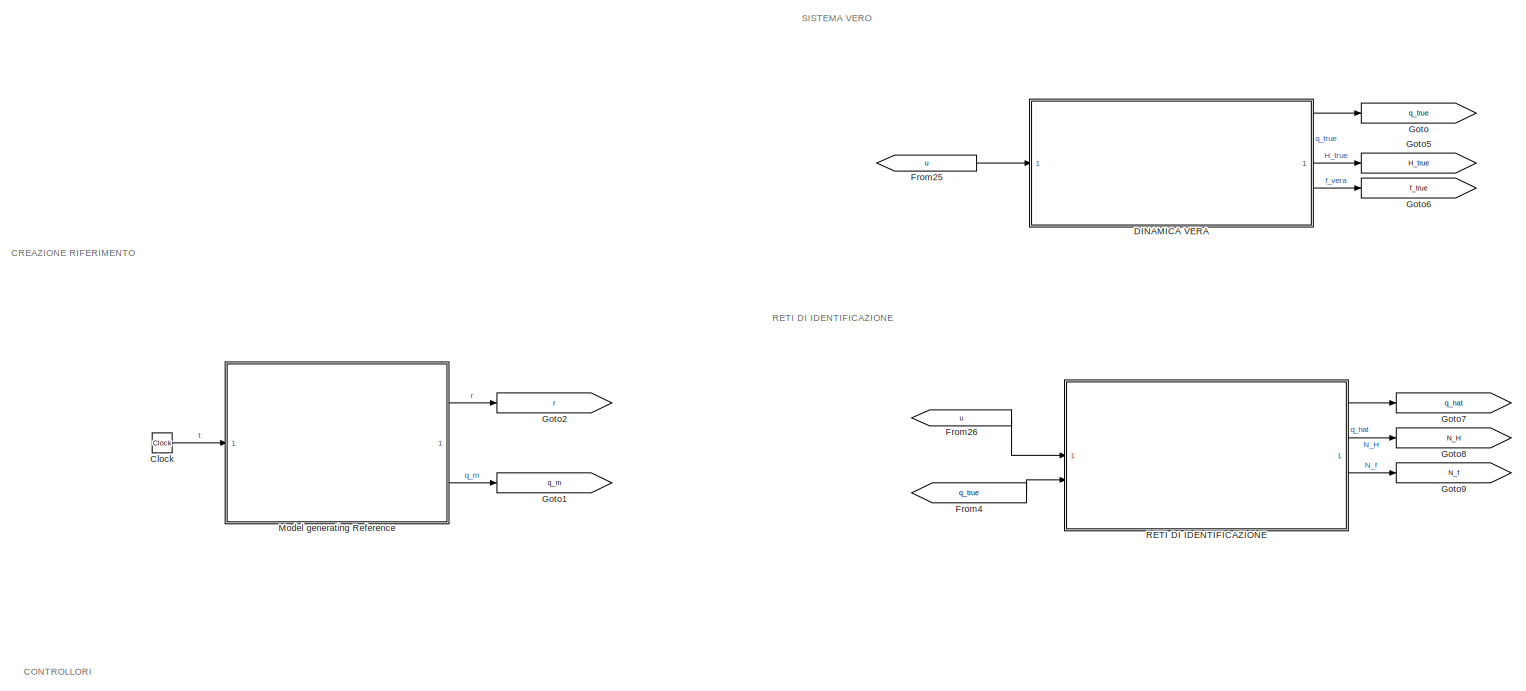
[diagram: root canvas - part 1/3, full width, top band]
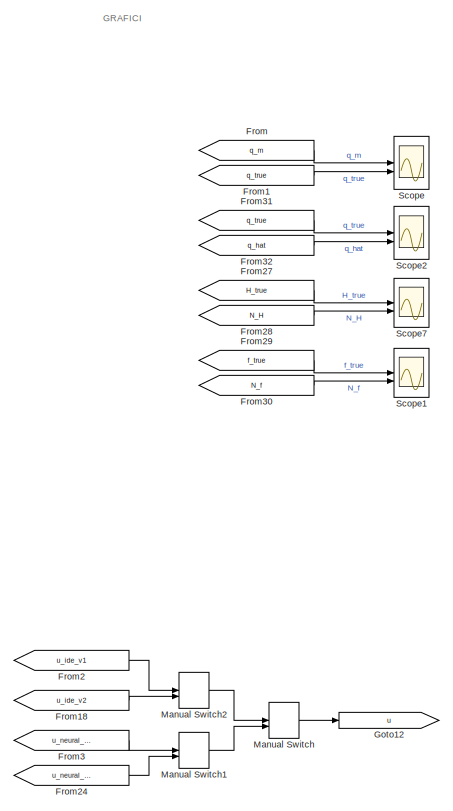
[diagram: root canvas - part 2/3, bottom right region]
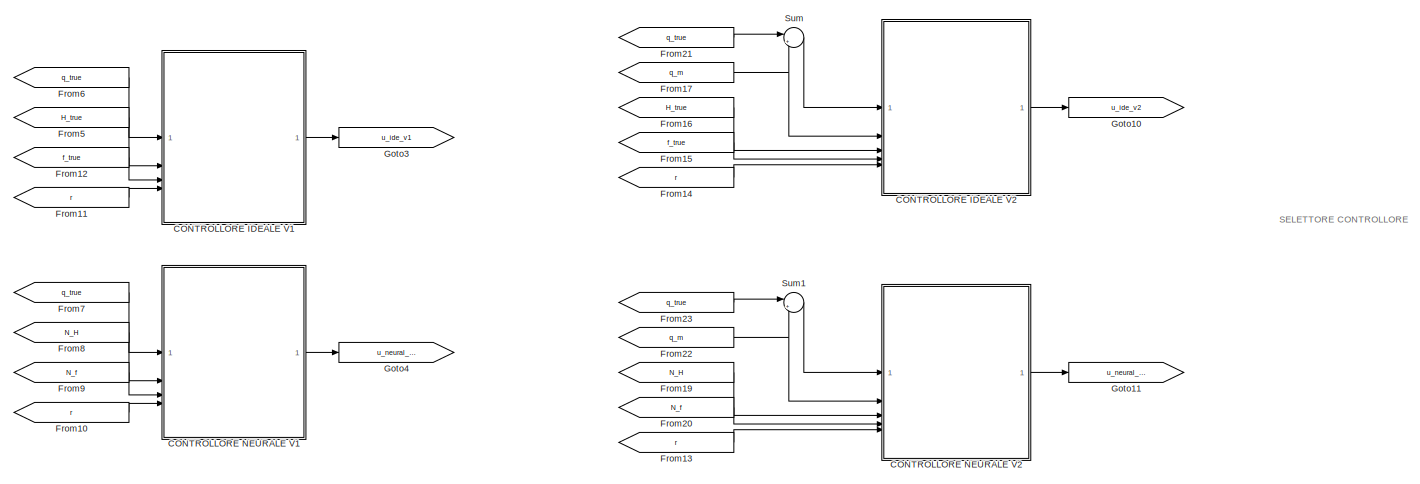
[diagram: root canvas - part 3/3, bottom center region]
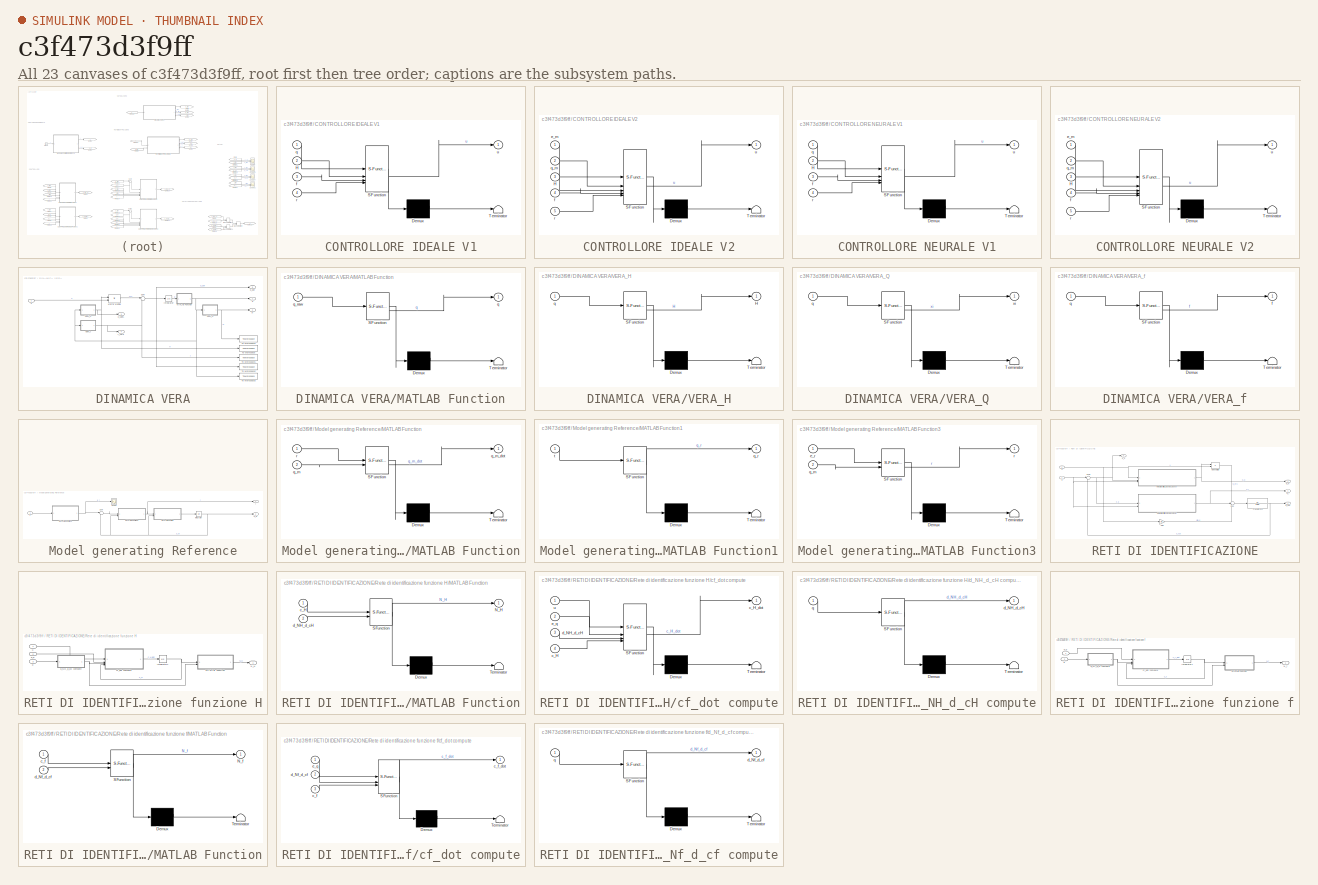
[diagram: thumbnail index - all 23 canvases of the model, root first then tree order]
MODEL slx_c3f473d3f9ff
KIND model
CONFIG AbsTol = auto
CONFIG EnableMultiTasking = off
CONFIG FixedStep = ST
CONFIG MaxStep = auto
CONFIG MinStep = auto
CONFIG RelTol = 1e-3
CONFIG SampleTimeConstraint = Unconstrained
CONFIG SolverName = FixedStepAuto
CONFIG StartTime = 0.0
CONFIG StopTime = T_max
BLOCK [SubSystem] CONTROLLORE IDEALE V1
  ErrorFcn = Stateflow.Translate.translate
  PermitHierarchicalResolution = ExplicitOnly
  SFBlockType = MATLAB Function
  TreatAsAtomicUnit = on
BLOCK [Demux] CONTROLLORE IDEALE V1/ Demux 
  Outputs = 1
BLOCK [S-Function] CONTROLLORE IDEALE V1/ SFunction 
  EnableBusSupport = on
  FunctionName = sf_sfun
  Parameters = a_m,b_m
  PortCounts = [4 2]
  SFcnIsStateOwnerBlock = off
  SFunctionDeploymentMode = off
  Tag = Stateflow S-Function 13
BLOCK [Terminator] CONTROLLORE IDEALE V1/ Terminator 
BLOCK [Inport] CONTROLLORE IDEALE V1/H
  Port = 2
BLOCK [Inport] CONTROLLORE IDEALE V1/f
  Port = 3
BLOCK [Inport] CONTROLLORE IDEALE V1/q
BLOCK [Inport] CONTROLLORE IDEALE V1/r
  Port = 4
BLOCK [Outport] CONTROLLORE IDEALE V1/u
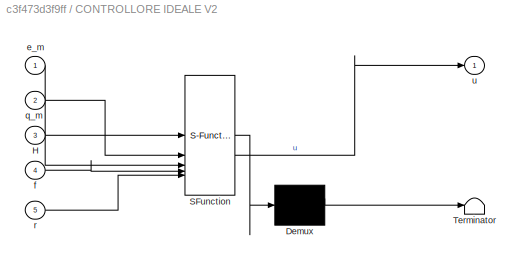
BLOCK [SubSystem] CONTROLLORE IDEALE V2
  ErrorFcn = Stateflow.Translate.translate
  PermitHierarchicalResolution = ExplicitOnly
  SFBlockType = MATLAB Function
  TreatAsAtomicUnit = on
BLOCK [Demux] CONTROLLORE IDEALE V2/ Demux 
  Outputs = 1
BLOCK [S-Function] CONTROLLORE IDEALE V2/ SFunction 
  EnableBusSupport = on
  FunctionName = sf_sfun
  Parameters = a_m,b_m,k_m
  PortCounts = [5 2]
  SFcnIsStateOwnerBlock = off
  SFunctionDeploymentMode = off
  Tag = Stateflow S-Function 14
BLOCK [Terminator] CONTROLLORE IDEALE V2/ Terminator 
BLOCK [Inport] CONTROLLORE IDEALE V2/H
  Port = 3
BLOCK [Inport] CONTROLLORE IDEALE V2/e_m
BLOCK [Inport] CONTROLLORE IDEALE V2/f
  Port = 4
BLOCK [Inport] CONTROLLORE IDEALE V2/q_m
  Port = 2
BLOCK [Inport] CONTROLLORE IDEALE V2/r
  Port = 5
BLOCK [Outport] CONTROLLORE IDEALE V2/u
BLOCK [SubSystem] CONTROLLORE NEURALE V1
  ErrorFcn = Stateflow.Translate.translate
  PermitHierarchicalResolution = ExplicitOnly
  SFBlockType = MATLAB Function
  TreatAsAtomicUnit = on
BLOCK [Demux] CONTROLLORE NEURALE V1/ Demux 
  Outputs = 1
BLOCK [S-Function] CONTROLLORE NEURALE V1/ SFunction 
  EnableBusSupport = on
  FunctionName = sf_sfun
  Parameters = a_m,b_m
  PortCounts = [4 2]
  SFcnIsStateOwnerBlock = off
  SFunctionDeploymentMode = off
  Tag = Stateflow S-Function 10
BLOCK [Terminator] CONTROLLORE NEURALE V1/ Terminator 
BLOCK [Inport] CONTROLLORE NEURALE V1/H
  Port = 2
BLOCK [Inport] CONTROLLORE NEURALE V1/f
  Port = 3
BLOCK [Inport] CONTROLLORE NEURALE V1/q
BLOCK [Inport] CONTROLLORE NEURALE V1/r
  Port = 4
BLOCK [Outport] CONTROLLORE NEURALE V1/u
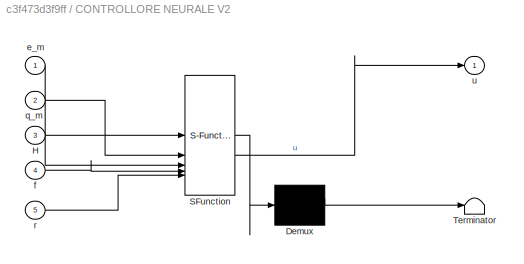
BLOCK [SubSystem] CONTROLLORE NEURALE V2
  ErrorFcn = Stateflow.Translate.translate
  PermitHierarchicalResolution = ExplicitOnly
  SFBlockType = MATLAB Function
  TreatAsAtomicUnit = on
BLOCK [Demux] CONTROLLORE NEURALE V2/ Demux 
  Outputs = 1
BLOCK [S-Function] CONTROLLORE NEURALE V2/ SFunction 
  EnableBusSupport = on
  FunctionName = sf_sfun
  Parameters = a_m,b_m,k_m
  PortCounts = [5 2]
  SFcnIsStateOwnerBlock = off
  SFunctionDeploymentMode = off
  Tag = Stateflow S-Function 15
BLOCK [Terminator] CONTROLLORE NEURALE V2/ Terminator 
BLOCK [Inport] CONTROLLORE NEURALE V2/H
  Port = 3
BLOCK [Inport] CONTROLLORE NEURALE V2/e_m
BLOCK [Inport] CONTROLLORE NEURALE V2/f
  Port = 4
BLOCK [Inport] CONTROLLORE NEURALE V2/q_m
  Port = 2
BLOCK [Inport] CONTROLLORE NEURALE V2/r
  Port = 5
BLOCK [Outport] CONTROLLORE NEURALE V2/u
BLOCK [Clock] Clock
BLOCK [SubSystem] DINAMICA VERA
BLOCK [Outport] DINAMICA VERA/H_VERA
  Port = 3
BLOCK [Integrator] DINAMICA VERA/Integrator
  InitialCondition = q_init
BLOCK [SubSystem] DINAMICA VERA/MATLAB Function
  ErrorFcn = Stateflow.Translate.translate
  PermitHierarchicalResolution = ExplicitOnly
  SFBlockType = MATLAB Function
  TreatAsAtomicUnit = on
BLOCK [Demux] DINAMICA VERA/MATLAB Function/ Demux 
  Outputs = 1
BLOCK [S-Function] DINAMICA VERA/MATLAB Function/ SFunction 
  EnableBusSupport = on
  FunctionName = sf_sfun
  PortCounts = [1 2]
  SFcnIsStateOwnerBlock = off
  SFunctionDeploymentMode = off
  Tag = Stateflow S-Function 3
BLOCK [Terminator] DINAMICA VERA/MATLAB Function/ Terminator 
BLOCK [Outport] DINAMICA VERA/MATLAB Function/q
BLOCK [Inport] DINAMICA VERA/MATLAB Function/q_raw
BLOCK [Product] DINAMICA VERA/Matrix Multiply
  Multiplication = Matrix(*)
BLOCK [Sum] DINAMICA VERA/Sum
  Inputs = |++
BLOCK [ToWorkspace] DINAMICA VERA/To Workspace
  FixptAsFi = on
  MaxDataPoints = inf
  SampleTime = -1
  SaveFormat = Timeseries
  VariableName = out_H_true
BLOCK [ToWorkspace] DINAMICA VERA/To Workspace1
  FixptAsFi = on
  MaxDataPoints = inf
  SampleTime = -1
  SaveFormat = Timeseries
  VariableName = out_f_true
BLOCK [ToWorkspace] DINAMICA VERA/To Workspace2
  FixptAsFi = on
  MaxDataPoints = inf
  SampleTime = -1
  SaveFormat = Timeseries
  VariableName = out_q_dot_true
BLOCK [ToWorkspace] DINAMICA VERA/To Workspace3
  FixptAsFi = on
  MaxDataPoints = inf
  SampleTime = -1
  SaveFormat = Timeseries
  VariableName = out_q_true
BLOCK [ToWorkspace] DINAMICA VERA/To Workspace4
  FixptAsFi = on
  MaxDataPoints = inf
  SampleTime = -1
  SaveFormat = Timeseries
  VariableName = out_xi_true
BLOCK [SubSystem] DINAMICA VERA/VERA_H
  ErrorFcn = Stateflow.Translate.translate
  PermitHierarchicalResolution = ExplicitOnly
  SFBlockType = MATLAB Function
  TreatAsAtomicUnit = on
BLOCK [Demux] DINAMICA VERA/VERA_H/ Demux 
  Outputs = 1
BLOCK [S-Function] DINAMICA VERA/VERA_H/ SFunction 
  EnableBusSupport = on
  FunctionName = sf_sfun
  PortCounts = [1 2]
  SFcnIsStateOwnerBlock = off
  SFunctionDeploymentMode = off
  Tag = Stateflow S-Function 2
BLOCK [Terminator] DINAMICA VERA/VERA_H/ Terminator 
BLOCK [Outport] DINAMICA VERA/VERA_H/H
BLOCK [Inport] DINAMICA VERA/VERA_H/q
BLOCK [SubSystem] DINAMICA VERA/VERA_Q
  ErrorFcn = Stateflow.Translate.translate
  PermitHierarchicalResolution = ExplicitOnly
  SFBlockType = MATLAB Function
  TreatAsAtomicUnit = on
BLOCK [Demux] DINAMICA VERA/VERA_Q/ Demux 
  Outputs = 1
BLOCK [S-Function] DINAMICA VERA/VERA_Q/ SFunction 
  EnableBusSupport = on
  FunctionName = sf_sfun
  PortCounts = [1 2]
  SFcnIsStateOwnerBlock = off
  SFunctionDeploymentMode = off
  Tag = Stateflow S-Function 4
BLOCK [Terminator] DINAMICA VERA/VERA_Q/ Terminator 
BLOCK [Inport] DINAMICA VERA/VERA_Q/q
BLOCK [Outport] DINAMICA VERA/VERA_Q/xi
BLOCK [SubSystem] DINAMICA VERA/VERA_f
  ErrorFcn = Stateflow.Translate.translate
  PermitHierarchicalResolution = ExplicitOnly
  SFBlockType = MATLAB Function
  TreatAsAtomicUnit = on
BLOCK [Demux] DINAMICA VERA/VERA_f/ Demux 
  Outputs = 1
BLOCK [S-Function] DINAMICA VERA/VERA_f/ SFunction 
  EnableBusSupport = on
  FunctionName = sf_sfun
  PortCounts = [1 2]
  SFcnIsStateOwnerBlock = off
  SFunctionDeploymentMode = off
  Tag = Stateflow S-Function 1
BLOCK [Terminator] DINAMICA VERA/VERA_f/ Terminator 
BLOCK [Outport] DINAMICA VERA/VERA_f/f
BLOCK [Inport] DINAMICA VERA/VERA_f/q
BLOCK [Outport] DINAMICA VERA/f_vera
  Port = 4
BLOCK [Outport] DINAMICA VERA/q
BLOCK [Outport] DINAMICA VERA/q_dot
  Port = 5
BLOCK [Inport] DINAMICA VERA/u
BLOCK [Outport] DINAMICA VERA/xi
  Port = 2
BLOCK [From] From
  GotoTag = q_m
BLOCK [From] From1
  GotoTag = q_true
BLOCK [From] From10
  GotoTag = r
BLOCK [From] From11
  GotoTag = r
BLOCK [From] From12
  GotoTag = f_true
BLOCK [From] From13
  GotoTag = r
BLOCK [From] From14
  GotoTag = r
BLOCK [From] From15
  GotoTag = f_true
BLOCK [From] From16
  GotoTag = H_true
BLOCK [From] From17
  GotoTag = q_m
BLOCK [From] From18
  GotoTag = u_ide_v2
BLOCK [From] From19
  GotoTag = N_H
BLOCK [From] From2
  GotoTag = u_ide_v1
BLOCK [From] From20
  GotoTag = N_f
BLOCK [From] From21
  GotoTag = q_true
BLOCK [From] From22
  GotoTag = q_m
BLOCK [From] From23
  GotoTag = q_true
BLOCK [From] From24
  GotoTag = u_neural_v2
BLOCK [From] From25
  GotoTag = u
BLOCK [From] From26
  GotoTag = u
BLOCK [From] From27
  GotoTag = H_true
BLOCK [From] From28
  GotoTag = N_H
BLOCK [From] From29
  GotoTag = f_true
BLOCK [From] From3
  GotoTag = u_neural_v1
BLOCK [From] From30
  GotoTag = N_f
BLOCK [From] From31
  GotoTag = q_true
BLOCK [From] From32
  GotoTag = q_hat
BLOCK [From] From4
  GotoTag = q_true
BLOCK [From] From5
  GotoTag = H_true
BLOCK [From] From6
  GotoTag = q_true
BLOCK [From] From7
  GotoTag = q_true
BLOCK [From] From8
  GotoTag = N_H
BLOCK [From] From9
  GotoTag = N_f
BLOCK [Goto] Goto
  GotoTag = q_true
BLOCK [Goto] Goto1
  GotoTag = q_m
BLOCK [Goto] Goto10
  GotoTag = u_ide_v2
BLOCK [Goto] Goto11
  GotoTag = u_neural_v2
BLOCK [Goto] Goto12
  GotoTag = u
BLOCK [Goto] Goto2
  GotoTag = r
BLOCK [Goto] Goto3
  GotoTag = u_ide_v1
BLOCK [Goto] Goto4
  GotoTag = u_neural_v1
BLOCK [Goto] Goto5
  GotoTag = H_true
BLOCK [Goto] Goto6
  GotoTag = f_true
BLOCK [Goto] Goto7
  GotoTag = q_hat
BLOCK [Goto] Goto8
  GotoTag = N_H
BLOCK [Goto] Goto9
  GotoTag = N_f
BLOCK [ManualSwitch] Manual Switch
  CurrentSetting = 0
BLOCK [ManualSwitch] Manual Switch1
  CurrentSetting = 0
BLOCK [ManualSwitch] Manual Switch2
BLOCK [SubSystem] Model generating Reference
BLOCK [Integrator] Model generating Reference/Integrator
BLOCK [SubSystem] Model generating Reference/MATLAB Function
  ErrorFcn = Stateflow.Translate.translate
  PermitHierarchicalResolution = ExplicitOnly
  SFBlockType = MATLAB Function
  TreatAsAtomicUnit = on
BLOCK [Demux] Model generating Reference/MATLAB Function/ Demux 
  Outputs = 1
BLOCK [S-Function] Model generating Reference/MATLAB Function/ SFunction 
  EnableBusSupport = on
  FunctionName = sf_sfun
  Parameters = a_m,b_m
  PortCounts = [2 2]
  SFcnIsStateOwnerBlock = off
  SFunctionDeploymentMode = off
  Tag = Stateflow S-Function 11
BLOCK [Terminator] Model generating Reference/MATLAB Function/ Terminator 
BLOCK [Inport] Model generating Reference/MATLAB Function/q_m
  Port = 2
BLOCK [Outport] Model generating Reference/MATLAB Function/q_m_dot
BLOCK [Inport] Model generating Reference/MATLAB Function/r
BLOCK [SubSystem] Model generating Reference/MATLAB Function1
  ErrorFcn = Stateflow.Translate.translate
  PermitHierarchicalResolution = ExplicitOnly
  SFBlockType = MATLAB Function
  TreatAsAtomicUnit = on
BLOCK [Demux] Model generating Reference/MATLAB Function1/ Demux 
  Outputs = 1
BLOCK [S-Function] Model generating Reference/MATLAB Function1/ SFunction 
  EnableBusSupport = on
  FunctionName = sf_sfun
  Parameters = a_r,omega_r,q_limit
  PortCounts = [1 2]
  SFcnIsStateOwnerBlock = off
  SFunctionDeploymentMode = off
  Tag = Stateflow S-Function 9
BLOCK [Terminator] Model generating Reference/MATLAB Function1/ Terminator 
BLOCK [Outport] Model generating Reference/MATLAB Function1/q_r
BLOCK [Inport] Model generating Reference/MATLAB Function1/t
BLOCK [SubSystem] Model generating Reference/MATLAB Function3
  ErrorFcn = Stateflow.Translate.translate
  PermitHierarchicalResolution = ExplicitOnly
  SFBlockType = MATLAB Function
  TreatAsAtomicUnit = on
BLOCK [Demux] Model generating Reference/MATLAB Function3/ Demux 
  Outputs = 1
BLOCK [S-Function] Model generating Reference/MATLAB Function3/ SFunction 
  EnableBusSupport = on
  FunctionName = sf_sfun
  Parameters = a_m,b_m,k_r
  PortCounts = [2 2]
  SFcnIsStateOwnerBlock = off
  SFunctionDeploymentMode = off
  Tag = Stateflow S-Function 12
BLOCK [Terminator] Model generating Reference/MATLAB Function3/ Terminator 
BLOCK [Inport] Model generating Reference/MATLAB Function3/e_r
BLOCK [Inport] Model generating Reference/MATLAB Function3/q_m
  Port = 2
BLOCK [Outport] Model generating Reference/MATLAB Function3/r
BLOCK [Scope] Model generating Reference/Scope
  Floating = off
  NumInputPorts = 1
  ScopeSpecificationString = Simulink.scopes.TimeScopeBlockCfg('CurrentConfiguration', extmgr.ConfigurationSet(extmgr.Configuration('Core','General UI',true),extmgr.Configuration('Core','Source UI',true),extmgr.Configuration('Sources','WiredSimulink',true,'DataLoggingVariableName','ScopeData1'),extmgr.Configuration('Visuals','Time Domain',true,'SerializedDisplays',{struct('MinYLimReal','-3.20119','MaxYLimReal','3.83103','YLab...<+1493ch>
BLOCK [Sum] Model generating Reference/Sum
  Inputs = |-+
BLOCK [Outport] Model generating Reference/q_m
  Port = 2
BLOCK [Outport] Model generating Reference/r
BLOCK [Inport] Model generating Reference/t
BLOCK [SubSystem] RETI DI IDENTIFICAZIONE
BLOCK [Gain] RETI DI IDENTIFICAZIONE/Gain
  Gain = alfa
BLOCK [Product] RETI DI IDENTIFICAZIONE/Matrix Multiply
  Multiplication = Matrix(*)
BLOCK [Outport] RETI DI IDENTIFICAZIONE/N_H
  Port = 2
BLOCK [Outport] RETI DI IDENTIFICAZIONE/N_f
  Port = 3
BLOCK [SubSystem] RETI DI IDENTIFICAZIONE/Rete di identificazione funzione H
BLOCK [Integrator] RETI DI IDENTIFICAZIONE/Rete di identificazione funzione H/Integrator1
  InitialCondition = c_H_init'
BLOCK [SubSystem] RETI DI IDENTIFICAZIONE/Rete di identificazione funzione H/MATLAB Function
  ErrorFcn = Stateflow.Translate.translate
  PermitHierarchicalResolution = ExplicitOnly
  SFBlockType = MATLAB Function
  TreatAsAtomicUnit = on
BLOCK [Demux] RETI DI IDENTIFICAZIONE/Rete di identificazione funzione H/MATLAB Function/ Demux 
  Outputs = 1
BLOCK [S-Function] RETI DI IDENTIFICAZIONE/Rete di identificazione funzione H/MATLAB Function/ SFunction 
  EnableBusSupport = on
  FunctionName = sf_sfun
  PortCounts = [2 2]
  SFcnIsStateOwnerBlock = off
  SFunctionDeploymentMode = off
  Tag = Stateflow S-Function 6
BLOCK [Terminator] RETI DI IDENTIFICAZIONE/Rete di identificazione funzione H/MATLAB Function/ Terminator 
BLOCK [Outport] RETI DI IDENTIFICAZIONE/Rete di identificazione funzione H/MATLAB Function/N_H
BLOCK [Inport] RETI DI IDENTIFICAZIONE/Rete di identificazione funzione H/MATLAB Function/c_H
BLOCK [Inport] RETI DI IDENTIFICAZIONE/Rete di identificazione funzione H/MATLAB Function/d_NH_d_cH
  Port = 2
BLOCK [Outport] RETI DI IDENTIFICAZIONE/Rete di identificazione funzione H/N_H
BLOCK [SubSystem] RETI DI IDENTIFICAZIONE/Rete di identificazione funzione H/cf_dot compute
  ErrorFcn = Stateflow.Translate.translate
  PermitHierarchicalResolution = ExplicitOnly
  SFBlockType = MATLAB Function
  TreatAsAtomicUnit = on
BLOCK [Demux] RETI DI IDENTIFICAZIONE/Rete di identificazione funzione H/cf_dot compute/ Demux 
  Outputs = 1
BLOCK [S-Function] RETI DI IDENTIFICAZIONE/Rete di identificazione funzione H/cf_dot compute/ SFunction 
  EnableBusSupport = on
  FunctionName = sf_sfun
  Parameters = M_H,lr_H
  PortCounts = [4 2]
  SFcnIsStateOwnerBlock = off
  SFunctionDeploymentMode = off
  Tag = Stateflow S-Function 16
BLOCK [Terminator] RETI DI IDENTIFICAZIONE/Rete di identificazione funzione H/cf_dot compute/ Terminator 
BLOCK [Inport] RETI DI IDENTIFICAZIONE/Rete di identificazione funzione H/cf_dot compute/c_H
  Port = 4
BLOCK [Outport] RETI DI IDENTIFICAZIONE/Rete di identificazione funzione H/cf_dot compute/c_H_dot
BLOCK [Inport] RETI DI IDENTIFICAZIONE/Rete di identificazione funzione H/cf_dot compute/d_NH_d_cH
  Port = 3
BLOCK [Inport] RETI DI IDENTIFICAZIONE/Rete di identificazione funzione H/cf_dot compute/e_q
  Port = 2
BLOCK [Inport] RETI DI IDENTIFICAZIONE/Rete di identificazione funzione H/cf_dot compute/u
BLOCK [SubSystem] RETI DI IDENTIFICAZIONE/Rete di identificazione funzione H/d_NH_d_cH compute
  ErrorFcn = Stateflow.Translate.translate
  PermitHierarchicalResolution = ExplicitOnly
  SFBlockType = MATLAB Function
  TreatAsAtomicUnit = on
BLOCK [Demux] RETI DI IDENTIFICAZIONE/Rete di identificazione funzione H/d_NH_d_cH compute/ Demux 
  Outputs = 1
BLOCK [S-Function] RETI DI IDENTIFICAZIONE/Rete di identificazione funzione H/d_NH_d_cH compute/ SFunction 
  EnableBusSupport = on
  FunctionName = sf_sfun
  Parameters = centri_H,numero_nodi_H,var_H
  PortCounts = [1 2]
  SFcnIsStateOwnerBlock = off
  SFunctionDeploymentMode = off
  Tag = Stateflow S-Function 17
BLOCK [Terminator] RETI DI IDENTIFICAZIONE/Rete di identificazione funzione H/d_NH_d_cH compute/ Terminator 
BLOCK [Outport] RETI DI IDENTIFICAZIONE/Rete di identificazione funzione H/d_NH_d_cH compute/d_NH_d_cH
BLOCK [Inport] RETI DI IDENTIFICAZIONE/Rete di identificazione funzione H/d_NH_d_cH compute/q
BLOCK [Inport] RETI DI IDENTIFICAZIONE/Rete di identificazione funzione H/e_q
  Port = 2
BLOCK [Inport] RETI DI IDENTIFICAZIONE/Rete di identificazione funzione H/q
  Port = 3
BLOCK [Inport] RETI DI IDENTIFICAZIONE/Rete di identificazione funzione H/u
BLOCK [SubSystem] RETI DI IDENTIFICAZIONE/Rete di identificazione funzione f
BLOCK [Integrator] RETI DI IDENTIFICAZIONE/Rete di identificazione funzione f/Integrator1
  InitialCondition = c_f_init'
BLOCK [SubSystem] RETI DI IDENTIFICAZIONE/Rete di identificazione funzione f/MATLAB Function
  ErrorFcn = Stateflow.Translate.translate
  PermitHierarchicalResolution = ExplicitOnly
  SFBlockType = MATLAB Function
  TreatAsAtomicUnit = on
BLOCK [Demux] RETI DI IDENTIFICAZIONE/Rete di identificazione funzione f/MATLAB Function/ Demux 
  Outputs = 1
BLOCK [S-Function] RETI DI IDENTIFICAZIONE/Rete di identificazione funzione f/MATLAB Function/ SFunction 
  EnableBusSupport = on
  FunctionName = sf_sfun
  PortCounts = [2 2]
  SFcnIsStateOwnerBlock = off
  SFunctionDeploymentMode = off
  Tag = Stateflow S-Function 5
BLOCK [Terminator] RETI DI IDENTIFICAZIONE/Rete di identificazione funzione f/MATLAB Function/ Terminator 
BLOCK [Outport] RETI DI IDENTIFICAZIONE/Rete di identificazione funzione f/MATLAB Function/N_f
BLOCK [Inport] RETI DI IDENTIFICAZIONE/Rete di identificazione funzione f/MATLAB Function/c_f
BLOCK [Inport] RETI DI IDENTIFICAZIONE/Rete di identificazione funzione f/MATLAB Function/d_Nf_d_cf
  Port = 2
BLOCK [Outport] RETI DI IDENTIFICAZIONE/Rete di identificazione funzione f/N_f
BLOCK [SubSystem] RETI DI IDENTIFICAZIONE/Rete di identificazione funzione f/cf_dot compute
  ErrorFcn = Stateflow.Translate.translate
  PermitHierarchicalResolution = ExplicitOnly
  SFBlockType = MATLAB Function
  TreatAsAtomicUnit = on
BLOCK [Demux] RETI DI IDENTIFICAZIONE/Rete di identificazione funzione f/cf_dot compute/ Demux 
  Outputs = 1
BLOCK [S-Function] RETI DI IDENTIFICAZIONE/Rete di identificazione funzione f/cf_dot compute/ SFunction 
  EnableBusSupport = on
  FunctionName = sf_sfun
  Parameters = M_f,lr_f
  PortCounts = [3 2]
  SFcnIsStateOwnerBlock = off
  SFunctionDeploymentMode = off
  Tag = Stateflow S-Function 8
BLOCK [Terminator] RETI DI IDENTIFICAZIONE/Rete di identificazione funzione f/cf_dot compute/ Terminator 
BLOCK [Inport] RETI DI IDENTIFICAZIONE/Rete di identificazione funzione f/cf_dot compute/c_f
  Port = 3
BLOCK [Outport] RETI DI IDENTIFICAZIONE/Rete di identificazione funzione f/cf_dot compute/c_f_dot
BLOCK [Inport] RETI DI IDENTIFICAZIONE/Rete di identificazione funzione f/cf_dot compute/d_Nf_d_cf
  Port = 2
BLOCK [Inport] RETI DI IDENTIFICAZIONE/Rete di identificazione funzione f/cf_dot compute/e_q
BLOCK [SubSystem] RETI DI IDENTIFICAZIONE/Rete di identificazione funzione f/d_Nf_d_cf compute
  ErrorFcn = Stateflow.Translate.translate
  PermitHierarchicalResolution = ExplicitOnly
  SFBlockType = MATLAB Function
  TreatAsAtomicUnit = on
BLOCK [Demux] RETI DI IDENTIFICAZIONE/Rete di identificazione funzione f/d_Nf_d_cf compute/ Demux 
  Outputs = 1
BLOCK [S-Function] RETI DI IDENTIFICAZIONE/Rete di identificazione funzione f/d_Nf_d_cf compute/ SFunction 
  EnableBusSupport = on
  FunctionName = sf_sfun
  Parameters = centri_f,numero_nodi_f,var_f
  PortCounts = [1 2]
  SFcnIsStateOwnerBlock = off
  SFunctionDeploymentMode = off
  Tag = Stateflow S-Function 7
BLOCK [Terminator] RETI DI IDENTIFICAZIONE/Rete di identificazione funzione f/d_Nf_d_cf compute/ Terminator 
BLOCK [Outport] RETI DI IDENTIFICAZIONE/Rete di identificazione funzione f/d_Nf_d_cf compute/d_Nf_d_cf
BLOCK [Inport] RETI DI IDENTIFICAZIONE/Rete di identificazione funzione f/d_Nf_d_cf compute/q
BLOCK [Inport] RETI DI IDENTIFICAZIONE/Rete di identificazione funzione f/e_q
BLOCK [Inport] RETI DI IDENTIFICAZIONE/Rete di identificazione funzione f/q
  Port = 2
BLOCK [Sum] RETI DI IDENTIFICAZIONE/Sum
  Inputs = +++
BLOCK [Sum] RETI DI IDENTIFICAZIONE/Sum1
  Inputs = |-+
BLOCK [TransferFcn] RETI DI IDENTIFICAZIONE/Transfer Fcn
  Denominator = [1 alfa]
BLOCK [Outport] RETI DI IDENTIFICAZIONE/e_q
  Port = 4
BLOCK [Inport] RETI DI IDENTIFICAZIONE/q
  Port = 2
BLOCK [Outport] RETI DI IDENTIFICAZIONE/q_hat
BLOCK [Inport] RETI DI IDENTIFICAZIONE/u
BLOCK [Scope] Scope
  Floating = off
  NumInputPorts = 2
  ScopeSpecificationString = Simulink.scopes.TimeScopeBlockCfg('CurrentConfiguration', extmgr.ConfigurationSet(extmgr.Configuration('Core','General UI',true),extmgr.Configuration('Core','Source UI',true),extmgr.Configuration('Sources','WiredSimulink',true,'DataLoggingVariableName','ScopeData4'),extmgr.Configuration('Visuals','Time Domain',true,'SerializedDisplays',{struct('MinYLimReal','-3.19789','MaxYLimReal','3.82733','YLab...<+1502ch>
BLOCK [Scope] Scope1
  Floating = off
  NumInputPorts = 2
  ScopeSpecificationString = Simulink.scopes.TimeScopeBlockCfg('CurrentConfiguration', extmgr.ConfigurationSet(extmgr.Configuration('Core','General UI',true),extmgr.Configuration('Core','Source UI',true),extmgr.Configuration('Sources','WiredSimulink',true,'DataLoggingVariableName','ScopeData2'),extmgr.Configuration('Visuals','Time Domain',true,'SerializedDisplays',{struct('MinYLimReal','-3.46072','MaxYLimReal','4.96154','YLab...<+1544ch>
BLOCK [Scope] Scope2
  Floating = off
  NumInputPorts = 2
  ScopeSpecificationString = Simulink.scopes.TimeScopeBlockCfg('CurrentConfiguration', extmgr.ConfigurationSet(extmgr.Configuration('Core','General UI',true),extmgr.Configuration('Core','Source UI',true),extmgr.Configuration('Sources','WiredSimulink',true,'DataLoggingVariableName','ScopeData3'),extmgr.Configuration('Visuals','Time Domain',true,'SerializedDisplays',{struct('MinYLimReal','-3.19789','MaxYLimReal','3.82733','YLab...<+1502ch>
BLOCK [Scope] Scope7
  Floating = off
  NumInputPorts = 2
  ScopeSpecificationString = Simulink.scopes.TimeScopeBlockCfg('CurrentConfiguration', extmgr.ConfigurationSet(extmgr.Configuration('Core','General UI',true),extmgr.Configuration('Core','Source UI',true),extmgr.Configuration('Sources','WiredSimulink',true,'DataLoggingVariableName','ScopeData7'),extmgr.Configuration('Visuals','Time Domain',true,'SerializedDisplays',{struct('MinYLimReal','-3.46072','MaxYLimReal','4.96154','YLab...<+1544ch>
BLOCK [Sum] Sum
  Inputs = |+-
BLOCK [Sum] Sum1
  Inputs = |+-
ANNOTATION (root): CONTROLLORI
ANNOTATION (root): CREAZIONE RIFERIMENTO
ANNOTATION (root): GRAFICI
ANNOTATION (root): RETI DI IDENTIFICAZIONE
ANNOTATION (root): SELETTORE CONTROLLORE
ANNOTATION (root): SISTEMA VERO
LINE CONTROLLORE IDEALE V1:1 -> Goto3:1
LINE CONTROLLORE IDEALE V2:1 -> Goto10:1
LINE CONTROLLORE NEURALE V1:1 -> Goto4:1
LINE CONTROLLORE NEURALE V2:1 -> Goto11:1
LINE Clock:1 -> Model generating Reference:1
LINE DINAMICA VERA/Integrator:1 -> DINAMICA VERA/MATLAB Function:1
NET DINAMICA VERA/MATLAB Function:1 -> DINAMICA VERA/To Workspace3:1, DINAMICA VERA/VERA_H:1, DINAMICA VERA/VERA_Q:1, DINAMICA VERA/VERA_f:1, DINAMICA VERA/q:1
LINE DINAMICA VERA/Matrix Multiply:1 -> DINAMICA VERA/Sum:1
NET DINAMICA VERA/Sum:1 -> DINAMICA VERA/Integrator:1, DINAMICA VERA/To Workspace2:1, DINAMICA VERA/q_dot:1
NET DINAMICA VERA/VERA_H:1 -> DINAMICA VERA/H_VERA:1, DINAMICA VERA/Matrix Multiply:1, DINAMICA VERA/To Workspace:1
NET DINAMICA VERA/VERA_Q:1 -> DINAMICA VERA/To Workspace4:1, DINAMICA VERA/xi:1
NET DINAMICA VERA/VERA_f:1 -> DINAMICA VERA/Sum:2, DINAMICA VERA/To Workspace1:1, DINAMICA VERA/f_vera:1
LINE DINAMICA VERA/u:1 -> DINAMICA VERA/Matrix Multiply:2
LINE DINAMICA VERA:1 -> Goto:1
LINE DINAMICA VERA:3 -> Goto5:1
LINE DINAMICA VERA:4 -> Goto6:1
LINE From10:1 -> CONTROLLORE NEURALE V1:4
LINE From11:1 -> CONTROLLORE IDEALE V1:4
LINE From12:1 -> CONTROLLORE IDEALE V1:3
LINE From13:1 -> CONTROLLORE NEURALE V2:5
LINE From14:1 -> CONTROLLORE IDEALE V2:5
LINE From15:1 -> CONTROLLORE IDEALE V2:4
LINE From16:1 -> CONTROLLORE IDEALE V2:3
NET From17:1 -> CONTROLLORE IDEALE V2:2, Sum:2
LINE From18:1 -> Manual Switch2:2
LINE From19:1 -> CONTROLLORE NEURALE V2:3
LINE From1:1 -> Scope:2
LINE From20:1 -> CONTROLLORE NEURALE V2:4
LINE From21:1 -> Sum:1
NET From22:1 -> CONTROLLORE NEURALE V2:2, Sum1:2
LINE From23:1 -> Sum1:1
LINE From24:1 -> Manual Switch1:2
LINE From25:1 -> DINAMICA VERA:1
LINE From26:1 -> RETI DI IDENTIFICAZIONE:1
LINE From27:1 -> Scope7:1
LINE From28:1 -> Scope7:2
LINE From29:1 -> Scope1:1
LINE From2:1 -> Manual Switch2:1
LINE From30:1 -> Scope1:2
LINE From31:1 -> Scope2:1
LINE From32:1 -> Scope2:2
LINE From3:1 -> Manual Switch1:1
LINE From4:1 -> RETI DI IDENTIFICAZIONE:2
LINE From5:1 -> CONTROLLORE IDEALE V1:2
LINE From6:1 -> CONTROLLORE IDEALE V1:1
LINE From7:1 -> CONTROLLORE NEURALE V1:1
LINE From8:1 -> CONTROLLORE NEURALE V1:2
LINE From9:1 -> CONTROLLORE NEURALE V1:3
LINE From:1 -> Scope:1
LINE Manual Switch1:1 -> Manual Switch:2
LINE Manual Switch2:1 -> Manual Switch:1
LINE Manual Switch:1 -> Goto12:1
NET Model generating Reference/Integrator:1 -> Model generating Reference/MATLAB Function3:2, Model generating Reference/MATLAB Function:2, Model generating Reference/Sum:2, Model generating Reference/q_m:1
NET Model generating Reference/MATLAB Function1:1 -> Model generating Reference/Scope:1, Model generating Reference/Sum:1
NET Model generating Reference/MATLAB Function3:1 -> Model generating Reference/MATLAB Function:1, Model generating Reference/r:1
LINE Model generating Reference/MATLAB Function:1 -> Model generating Reference/Integrator:1
LINE Model generating Reference/Sum:1 -> Model generating Reference/MATLAB Function3:1
LINE Model generating Reference/t:1 -> Model generating Reference/MATLAB Function1:1
LINE Model generating Reference:1 -> Goto2:1
LINE Model generating Reference:2 -> Goto1:1
LINE RETI DI IDENTIFICAZIONE/Gain:1 -> RETI DI IDENTIFICAZIONE/Sum:3
LINE RETI DI IDENTIFICAZIONE/Matrix Multiply:1 -> RETI DI IDENTIFICAZIONE/Sum:1
NET RETI DI IDENTIFICAZIONE/Rete di identificazione funzione H/Integrator1:1 -> RETI DI IDENTIFICAZIONE/Rete di identificazione funzione H/MATLAB Function:1, RETI DI IDENTIFICAZIONE/Rete di identificazione funzione H/cf_dot compute:4
LINE RETI DI IDENTIFICAZIONE/Rete di identificazione funzione H/MATLAB Function:1 -> RETI DI IDENTIFICAZIONE/Rete di identificazione funzione H/N_H:1
LINE RETI DI IDENTIFICAZIONE/Rete di identificazione funzione H/cf_dot compute:1 -> RETI DI IDENTIFICAZIONE/Rete di identificazione funzione H/Integrator1:1
NET RETI DI IDENTIFICAZIONE/Rete di identificazione funzione H/d_NH_d_cH compute:1 -> RETI DI IDENTIFICAZIONE/Rete di identificazione funzione H/MATLAB Function:2, RETI DI IDENTIFICAZIONE/Rete di identificazione funzione H/cf_dot compute:3
LINE RETI DI IDENTIFICAZIONE/Rete di identificazione funzione H/e_q:1 -> RETI DI IDENTIFICAZIONE/Rete di identificazione funzione H/cf_dot compute:2
LINE RETI DI IDENTIFICAZIONE/Rete di identificazione funzione H/q:1 -> RETI DI IDENTIFICAZIONE/Rete di identificazione funzione H/d_NH_d_cH compute:1
LINE RETI DI IDENTIFICAZIONE/Rete di identificazione funzione H/u:1 -> RETI DI IDENTIFICAZIONE/Rete di identificazione funzione H/cf_dot compute:1
NET RETI DI IDENTIFICAZIONE/Rete di identificazione funzione H:1 -> RETI DI IDENTIFICAZIONE/Matrix Multiply:1, RETI DI IDENTIFICAZIONE/N_H:1
NET RETI DI IDENTIFICAZIONE/Rete di identificazione funzione f/Integrator1:1 -> RETI DI IDENTIFICAZIONE/Rete di identificazione funzione f/MATLAB Function:1, RETI DI IDENTIFICAZIONE/Rete di identificazione funzione f/cf_dot compute:3
LINE RETI DI IDENTIFICAZIONE/Rete di identificazione funzione f/MATLAB Function:1 -> RETI DI IDENTIFICAZIONE/Rete di identificazione funzione f/N_f:1
LINE RETI DI IDENTIFICAZIONE/Rete di identificazione funzione f/cf_dot compute:1 -> RETI DI IDENTIFICAZIONE/Rete di identificazione funzione f/Integrator1:1
NET RETI DI IDENTIFICAZIONE/Rete di identificazione funzione f/d_Nf_d_cf compute:1 -> RETI DI IDENTIFICAZIONE/Rete di identificazione funzione f/MATLAB Function:2, RETI DI IDENTIFICAZIONE/Rete di identificazione funzione f/cf_dot compute:2
LINE RETI DI IDENTIFICAZIONE/Rete di identificazione funzione f/e_q:1 -> RETI DI IDENTIFICAZIONE/Rete di identificazione funzione f/cf_dot compute:1
LINE RETI DI IDENTIFICAZIONE/Rete di identificazione funzione f/q:1 -> RETI DI IDENTIFICAZIONE/Rete di identificazione funzione f/d_Nf_d_cf compute:1
NET RETI DI IDENTIFICAZIONE/Rete di identificazione funzione f:1 -> RETI DI IDENTIFICAZIONE/N_f:1, RETI DI IDENTIFICAZIONE/Sum:2
NET RETI DI IDENTIFICAZIONE/Sum1:1 -> RETI DI IDENTIFICAZIONE/Rete di identificazione funzione H:2, RETI DI IDENTIFICAZIONE/Rete di identificazione funzione f:1, RETI DI IDENTIFICAZIONE/e_q:1
LINE RETI DI IDENTIFICAZIONE/Sum:1 -> RETI DI IDENTIFICAZIONE/Transfer Fcn:1
NET RETI DI IDENTIFICAZIONE/Transfer Fcn:1 -> RETI DI IDENTIFICAZIONE/Sum1:2, RETI DI IDENTIFICAZIONE/q_hat:1
NET RETI DI IDENTIFICAZIONE/q:1 -> RETI DI IDENTIFICAZIONE/Rete di identificazione funzione H:3, RETI DI IDENTIFICAZIONE/Rete di identificazione funzione f:2, RETI DI IDENTIFICAZIONE/Sum1:1
NET RETI DI IDENTIFICAZIONE/u:1 -> RETI DI IDENTIFICAZIONE/Gain:1, RETI DI IDENTIFICAZIONE/Matrix Multiply:2, RETI DI IDENTIFICAZIONE/Rete di identificazione funzione H:1
LINE RETI DI IDENTIFICAZIONE:1 -> Goto7:1
LINE RETI DI IDENTIFICAZIONE:2 -> Goto8:1
LINE RETI DI IDENTIFICAZIONE:3 -> Goto9:1
LINE Sum1:1 -> CONTROLLORE NEURALE V2:1
LINE Sum:1 -> CONTROLLORE IDEALE V2:1
note: NET lines group one-source signal fan-out (src -> all destinations, sorted); 1:1 wires keep LINE
CHART Model generating Reference/MATLAB Function states=1 transitions=1
  STATE_LABEL 'eML_blk_kernel()'
  STATE_LABEL 'SCRIPT:\nfunction q_m_dot = reference_dynamic(r, q_m, b_m, a_m)\n\nq_m_dot = -a_m*q_m + b_m*r;\n\n'
CHART Model generating Reference/MATLAB Function3 states=1 transitions=1
  STATE_LABEL 'eML_blk_kernel()'
  STATE_LABEL 'SCRIPT:\nfunction r = reference_controller(e_r, q_m, k_r, b_m, a_m)\n\nr = (1/b_m)*(a_m*q_m - k_r*e_r);\n'
CHART CONTROLLORE IDEALE V1 states=1 transitions=1
  STATE_LABEL 'eML_blk_kernel()'
  STATE_LABEL 'SCRIPT:\nfunction u = controllore_V1(q, H, f, r, b_m, a_m)\n\nu = (1/H)*(-a_m*q + b_m*r - f);\n'
CHART CONTROLLORE IDEALE V2 states=1 transitions=1
  STATE_LABEL 'eML_blk_kernel()'
  STATE_LABEL 'SCRIPT:\nfunction u = controllore_V2(e_m, q_m, H, f, r, b_m, a_m, k_m)\n\nu = (1/H)*(-a_m*q_m + b_m*r - f -k_m*e_m);\n'
CHART DINAMICA VERA/VERA_f states=1 transitions=1
  STATE_LABEL 'eML_blk_kernel()'
  STATE_LABEL 'SCRIPT:\nfunction f = f(q)\n\nf = (1/2/pi)*sin(2*pi*q);\n% f = -q;'
CHART CONTROLLORE NEURALE V2 states=1 transitions=1
  STATE_LABEL 'eML_blk_kernel()'
  STATE_LABEL 'SCRIPT:\nfunction u = controllore_V2(e_m, q_m, H, f, r, b_m, a_m, k_m)\n\nu = (1/H)*(-a_m*q_m + b_m*r - f -k_m*e_m);\n'
CHART RETI DI IDENTIFICAZIONE/Rete di identificazione funzione H/cf_dot compute states=1 transitions=1
  STATE_LABEL 'eML_blk_kernel()'
  STATE_LABEL "SCRIPT:\nfunction c_H_dot = cH_dot(u, e_q, d_NH_d_cH, M_H, lr_H, c_H)\n\nnorm_c_H = norm(c_H);\n\nif norm_c_H <= M_H\n    c_H_dot = - lr_H * d_NH_d_cH * e_q * u;\nelse\n    c_H_dot = - lr_H * d_NH_d_cH * e_q * u + (lr_H*e_q*c_H'*d_NH_d_cH*u/norm_c_H^2)*c_H;\nend"
CHART RETI DI IDENTIFICAZIONE/Rete di identificazione funzione H/d_NH_d_cH compute states=1 transitions=1
  STATE_LABEL 'eML_blk_kernel()'
  STATE_LABEL 'SCRIPT:\nfunction d_NH_d_cH = d_NH_d_cH(q, var_H, centri_H, numero_nodi_H)\n\nd_NH_d_cH = zeros(numero_nodi_H, 1);\n\nfor i=1:numero_nodi_H\n    d_NH_d_cH(i) = gaussiana(centri_H(i), var_H, q);\nend\n'
CHART DINAMICA VERA/VERA_H states=1 transitions=1
  STATE_LABEL 'eML_blk_kernel()'
  STATE_LABEL 'SCRIPT:\nfunction H = H(q)\n\nH = 1+(1/5/pi)*cos(5*pi*q);\n% H = 1;\n'
CHART DINAMICA VERA/MATLAB Function states=1 transitions=1
  STATE_LABEL 'eML_blk_kernel()'
  STATE_LABEL 'SCRIPT:\nfunction q = wrap_to_pi(q_raw)\n\nq = atan2(sin(q_raw), cos(q_raw));\n'
CHART DINAMICA VERA/VERA_Q states=1 transitions=1
  STATE_LABEL 'eML_blk_kernel()'
  STATE_LABEL 'SCRIPT:\nfunction xi = Q(q)\n\nxi = 10*cos(q);\n'
CHART RETI DI IDENTIFICAZIONE/Rete di identificazione funzione f/MATLAB Function states=1 transitions=1
  STATE_LABEL 'eML_blk_kernel()'
  STATE_LABEL "SCRIPT:\nfunction N_f = N_f(c_f, d_Nf_d_cf)\n\nN_f = c_f'*d_Nf_d_cf;\n"
CHART RETI DI IDENTIFICAZIONE/Rete di identificazione funzione H/MATLAB Function states=1 transitions=1
  STATE_LABEL 'eML_blk_kernel()'
  STATE_LABEL "SCRIPT:\nfunction N_H = N_H(c_H, d_NH_d_cH)\n\nN_H = (0.5*ones(1, length(c_H)) + c_H')*d_NH_d_cH;\n"
CHART RETI DI IDENTIFICAZIONE/Rete di identificazione funzione f/d_Nf_d_cf compute states=1 transitions=1
  STATE_LABEL 'eML_blk_kernel()'
  STATE_LABEL 'SCRIPT:\nfunction d_Nf_d_cf = d_Nf_d_cf(q, var_f, centri_f, numero_nodi_f)\n\nd_Nf_d_cf = zeros(numero_nodi_f, 1);\n\nfor i=1:numero_nodi_f\n    d_Nf_d_cf(i,1) = gaussiana(centri_f(i), var_f, q);\nend\n'
CHART RETI DI IDENTIFICAZIONE/Rete di identificazione funzione f/cf_dot compute states=1 transitions=1
  STATE_LABEL 'eML_blk_kernel()'
  STATE_LABEL "SCRIPT:\nfunction c_f_dot = cf_dot(e_q, d_Nf_d_cf, c_f, M_f, lr_f)\n\nnorm_c_f = norm(c_f);\n\nif norm_c_f <= M_f\n    c_f_dot = - lr_f * d_Nf_d_cf * e_q;\nelse\n    c_f_dot = - lr_f * d_Nf_d_cf * e_q + (lr_f*e_q*c_f'*d_Nf_d_cf/norm_c_f^2)*c_f;\nend\n\n"
CHART Model generating Reference/MATLAB Function1 states=1 transitions=1
  STATE_LABEL 'eML_blk_kernel()'
  STATE_LABEL 'SCRIPT:\nfunction q_r  = q_ref(t, q_limit, omega_r, a_r)\n\nq_r = (q_limit/2)*(sin(a_r*omega_r*t) + sin((1+a_r)*omega_r*t));\n'
CHART CONTROLLORE NEURALE V1 states=1 transitions=1
  STATE_LABEL 'eML_blk_kernel()'
  STATE_LABEL 'SCRIPT:\nfunction u = controllore_V1(q, H, f, r, b_m, a_m)\n\nu = (1/H)*(-a_m*q + b_m*r - f);\n'
CHART  states=0 transitions=0
CHART  states=0 transitions=0
CHART  states=0 transitions=0
CHART  states=0 transitions=0
CHART  states=0 transitions=0
CHART  states=0 transitions=0
CHART  states=0 transitions=0
CHART  states=0 transitions=0
CHART  states=0 transitions=0
CHART  states=0 transitions=0
CHART  states=0 transitions=0
CHART  states=0 transitions=0
CHART  states=0 transitions=0
CHART  states=0 transitions=0
CHART  states=0 transitions=0
CHART  states=0 transitions=0
CHART  states=0 transitions=0
